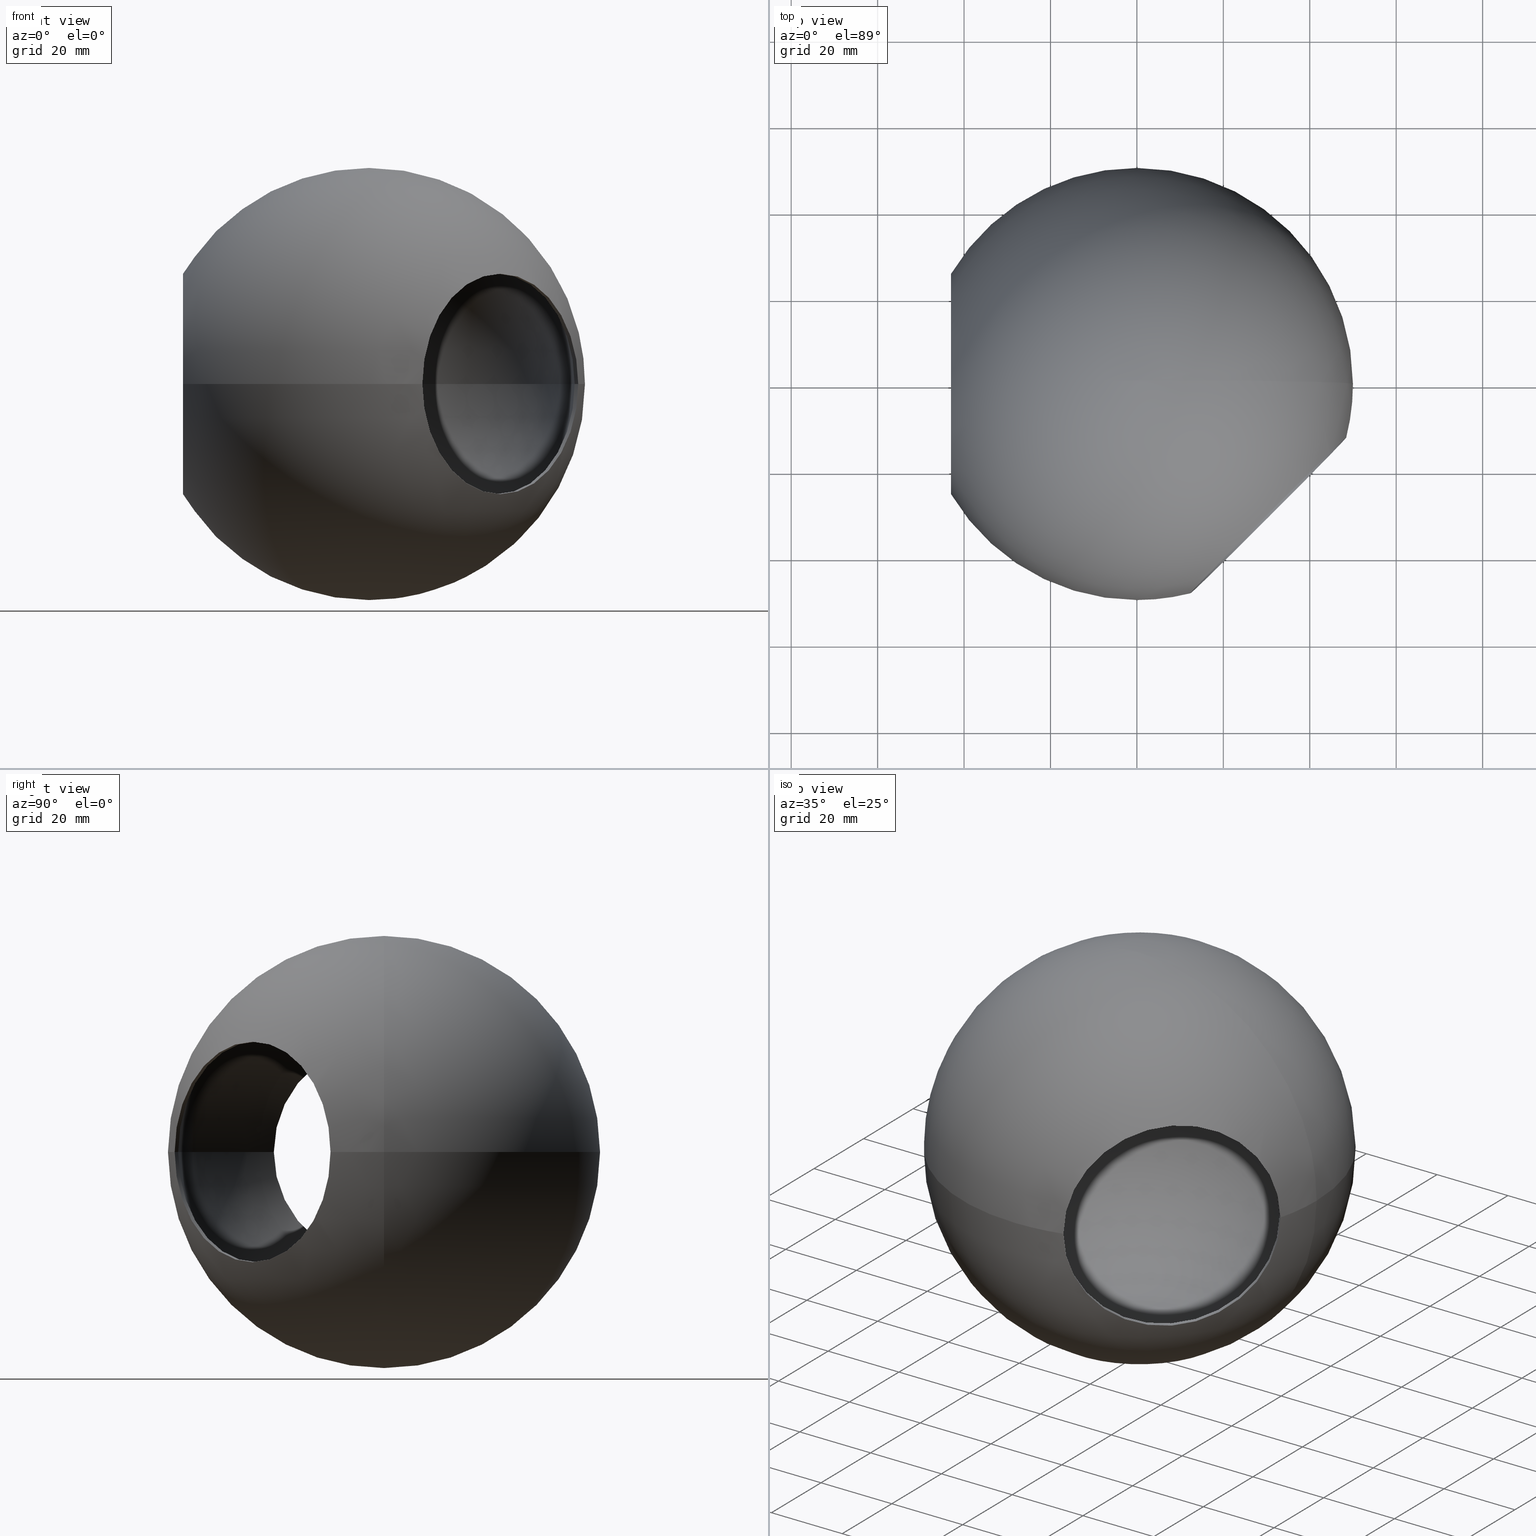
[diagram: canonical four-view strip — front | top / right | iso, engineering-drawing reading convention]
A machine part, canonical four-view strip (front | top / right | iso — engineering-drawing reading convention). The complete STEP part file that produces these views, byte-faithful:
ISO-10303-21;
HEADER;
FILE_DESCRIPTION (( 'STEP AP214' ),
    '1' );
FILE_NAME ('���. KRT315.STEP',
    '2014-07-01T07:06:39',
    ( '' ),
    ( '' ),
    'SwSTEP 2.0',
    'SolidWorks 2014',
    '' );
FILE_SCHEMA (( 'AUTOMOTIVE_DESIGN' ));
ENDSEC;

DATA;
#1 = FACE_OUTER_BOUND ( 'NONE', #287, .T. ) ;
#2 = ORIENTED_EDGE ( 'NONE', *, *, #57, .F. ) ;
#3 = AXIS2_PLACEMENT_3D ( 'NONE', #268, #269, #327 ) ;
#4 = DIRECTION ( 'NONE',  ( 1.000000000000000000, 0.0000000000000000000, 0.0000000000000000000 ) ) ;
#5 = CARTESIAN_POINT ( 'NONE',  ( -41.84196458102798700, 0.0000000000000000000, 0.0000000000000000000 ) ) ;
#6 = FACE_OUTER_BOUND ( 'NONE', #265, .T. ) ;
#7 = DIRECTION ( 'NONE',  ( 1.000000000000000000, 0.0000000000000000000, 0.0000000000000000000 ) ) ;
#8 = APPLICATION_PROTOCOL_DEFINITION ( 'draft international standard', 'automotive_design', 1998, #18 ) ;
#9 = UNCERTAINTY_MEASURE_WITH_UNIT (LENGTH_MEASURE( 1.000000000000000100E-005 ), #217, 'distance_accuracy_value', 'NONE');
#10 = DIRECTION ( 'NONE',  ( 0.0000000000000000000, 0.0000000000000000000, -1.000000000000000000 ) ) ;
#11 = DIRECTION ( 'NONE',  ( 0.0000000000000000000, 0.0000000000000000000, 1.000000000000000000 ) ) ;
#12 = CARTESIAN_POINT ( 'NONE',  ( 12.38053467446315800, -48.44298051497673900, 3.122849337825750200E-015 ) ) ;
#13 = DIRECTION ( 'NONE',  ( 1.000000000000000000, 0.0000000000000000000, 0.0000000000000000000 ) ) ;
#14 = VERTEX_POINT ( 'NONE', #307 ) ;
#15 = EDGE_CURVE ( 'NONE', #152, #25, #199, .T. ) ;
#16 = ORIENTED_EDGE ( 'NONE', *, *, #62, .F. ) ;
#17 = CARTESIAN_POINT ( 'NONE',  ( -43.00872004605578500, 0.0000000000000000000, 0.0000000000000000000 ) ) ;
#18 = APPLICATION_CONTEXT ( 'automotive_design' ) ;
#19 = DIRECTION ( 'NONE',  ( 0.0000000000000000000, 0.0000000000000000000, -1.000000000000000000 ) ) ;
#20 = COLOUR_RGB ( '',0.7529411764705882200, 0.7529411764705882200, 0.7529411764705882200 ) ;
#21 = SURFACE_SIDE_STYLE ('',( #107 ) ) ;
#22 = AXIS2_PLACEMENT_3D ( 'NONE', #181, #4, #205 ) ;
#23 = UNCERTAINTY_MEASURE_WITH_UNIT (LENGTH_MEASURE( 1.000000000000000100E-005 ), #255, 'distance_accuracy_value', 'NONE');
#24 = COLOUR_RGB ( '',0.7529411764705882200, 0.7529411764705882200, 0.7529411764705882200 ) ;
#25 = VERTEX_POINT ( 'NONE', #334 ) ;
#26 = SPHERICAL_SURFACE ( 'NONE', #260, 50.00000000000000000 ) ;
#27 = EDGE_CURVE ( 'NONE', #25, #152, #58, .T. ) ;
#28 = ORIENTED_EDGE ( 'NONE', *, *, #121, .F. ) ;
#29 = EDGE_CURVE ( 'NONE', #114, #152, #51, .T. ) ;
#30 = ORIENTED_EDGE ( 'NONE', *, *, #41, .T. ) ;
#31 = EDGE_CURVE ( 'NONE', #61, #191, #147, .T. ) ;
#32 = EDGE_CURVE ( 'NONE', #14, #301, #296, .T. ) ;
#33 = DIRECTION ( 'NONE',  ( 1.000000000000000000, 0.0000000000000000000, 0.0000000000000000000 ) ) ;
#34 = ORIENTED_EDGE ( 'NONE', *, *, #112, .F. ) ;
#35 = DIRECTION ( 'NONE',  ( 0.0000000000000000000, 0.0000000000000000000, -1.000000000000000000 ) ) ;
#36 = ORIENTED_EDGE ( 'NONE', *, *, #29, .T. ) ;
#37 = EDGE_CURVE ( 'NONE', #225, #191, #44, .T. ) ;
#38 = EDGE_CURVE ( 'NONE', #61, #247, #56, .T. ) ;
#39 = CARTESIAN_POINT ( 'NONE',  ( 3.061616997868383000E-015, 50.00000000000000000, 0.0000000000000000000 ) ) ;
#40 = CARTESIAN_POINT ( 'NONE',  ( -43.00872004605578500, 0.0000000000000000000, 0.0000000000000000000 ) ) ;
#41 = EDGE_CURVE ( 'NONE', #191, #295, #254, .T. ) ;
#42 = SHAPE_DEFINITION_REPRESENTATION ( #283, #157 ) ;
#43 = DIRECTION ( 'NONE',  ( 0.7071067811865514600, -0.7071067811865435800, -0.0000000000000000000 ) ) ;
#44 = CIRCLE ( 'NONE', #173, 25.50000000000000000 ) ;
#45 =( NAMED_UNIT ( * ) SI_UNIT ( $, .STERADIAN. ) SOLID_ANGLE_UNIT ( ) );
#46 = PRODUCT_CONTEXT ( 'NONE', #18, 'mechanical' ) ;
#47 = AXIS2_PLACEMENT_3D ( 'NONE', #302, #236, #13 ) ;
#48 = CARTESIAN_POINT ( 'NONE',  ( -41.84196458102798700, 0.0000000000000000000, 0.0000000000000000000 ) ) ;
#49 = SPHERICAL_SURFACE ( 'NONE', #172, 50.00000000000000000 ) ;
#50 = ADVANCED_FACE ( 'NONE', ( #128 ), #82, .F. ) ;
#51 = CIRCLE ( 'NONE', #316, 49.00000000000000000 ) ;
#52 = ORIENTED_EDGE ( 'NONE', *, *, #31, .T. ) ;
#53 = CLOSED_SHELL ( 'NONE', ( #54, #80, #168, #219, #50, #331, #138, #286 ) ) ;
#54 = ADVANCED_FACE ( 'NONE', ( #1 ), #26, .T. ) ;
#55 = CIRCLE ( 'NONE', #22, 25.50000000000000000 ) ;
#56 = CIRCLE ( 'NONE', #291, 25.50000000000000000 ) ;
#57 = EDGE_CURVE ( 'NONE', #14, #311, #238, .T. ) ;
#58 = CIRCLE ( 'NONE', #97, 25.49999999999999600 ) ;
#59 = DIRECTION ( 'NONE',  ( 0.7071067811865514600, -0.7071067811865435800, -0.0000000000000000000 ) ) ;
#60 = UNCERTAINTY_MEASURE_WITH_UNIT (LENGTH_MEASURE( 1.000000000000000100E-005 ), #155, 'distance_accuracy_value', 'NONE');
#61 = VERTEX_POINT ( 'NONE', #99 ) ;
#62 = EDGE_CURVE ( 'NONE', #25, #332, #337, .T. ) ;
#63 =( GEOMETRIC_REPRESENTATION_CONTEXT ( 3 ) GLOBAL_UNCERTAINTY_ASSIGNED_CONTEXT ( ( #23 ) ) GLOBAL_UNIT_ASSIGNED_CONTEXT ( ( #255, #212, #252 ) ) REPRESENTATION_CONTEXT ( 'NONE', 'WORKASPACE' ) );
#64 = EDGE_CURVE ( 'NONE', #295, #301, #274, .T. ) ;
#65 = EDGE_CURVE ( 'NONE', #152, #133, #140, .T. ) ;
#66 = ORIENTED_EDGE ( 'NONE', *, *, #90, .T. ) ;
#67 = AXIS2_PLACEMENT_3D ( 'NONE', #214, #156, #76 ) ;
#68 = DIRECTION ( 'NONE',  ( 0.0000000000000000000, 0.0000000000000000000, -1.000000000000000000 ) ) ;
#69 = DIRECTION ( 'NONE',  ( 0.7071067811865514600, -0.7071067811865435800, 0.0000000000000000000 ) ) ;
#70 = SURFACE_STYLE_USAGE ( .BOTH. , #178 ) ;
#71 = CARTESIAN_POINT ( 'NONE',  ( -43.00872004605578500, 3.122849337825750200E-015, -25.50000000000000000 ) ) ;
#72 = CARTESIAN_POINT ( 'NONE',  ( 3.061616997868383000E-015, -50.00000000000000000, 0.0000000000000000000 ) ) ;
#73 = FILL_AREA_STYLE_COLOUR ( '', #20 ) ;
#74 = AXIS2_PLACEMENT_3D ( 'NONE', #237, #259, #304 ) ;
#75 = DIRECTION ( 'NONE',  ( -0.7071067811865435800, -0.7071067811865515700, 0.0000000000000000000 ) ) ;
#76 = DIRECTION ( 'NONE',  ( 0.7071067811865435800, 0.7071067811865515700, 0.0000000000000000000 ) ) ;
#77 = ORIENTED_EDGE ( 'NONE', *, *, #184, .T. ) ;
#78 = ORIENTED_EDGE ( 'NONE', *, *, #121, .T. ) ;
#79 = CARTESIAN_POINT ( 'NONE',  ( 72.12489168102781900, 0.0000000000000000000, 25.50000000000000000 ) ) ;
#80 = ADVANCED_FACE ( 'NONE', ( #320 ), #209, .F. ) ;
#81 = CARTESIAN_POINT ( 'NONE',  ( -43.00872004605578500, 0.0000000000000000000, 0.0000000000000000000 ) ) ;
#82 = SPHERICAL_SURFACE ( 'NONE', #235, 49.00000000000000000 ) ;
#83 = AXIS2_PLACEMENT_3D ( 'NONE', #298, #182, #325 ) ;
#84 = DIRECTION ( 'NONE',  ( 0.7071067811865514600, -0.7071067811865435800, -0.0000000000000000000 ) ) ;
#85 = EDGE_CURVE ( 'NONE', #295, #141, #120, .T. ) ;
#86 = CIRCLE ( 'NONE', #285, 25.49999999999999600 ) ;
#87 = ORIENTED_EDGE ( 'NONE', *, *, #57, .T. ) ;
#88 = AXIS2_PLACEMENT_3D ( 'NONE', #137, #308, #218 ) ;
#89 = ORIENTED_EDGE ( 'NONE', *, *, #64, .T. ) ;
#90 = EDGE_CURVE ( 'NONE', #216, #141, #282, .T. ) ;
#91 = CIRCLE ( 'NONE', #180, 25.50000000000000000 ) ;
#92 = CARTESIAN_POINT ( 'NONE',  ( 0.0000000000000000000, 0.0000000000000000000, 0.0000000000000000000 ) ) ;
#93 = DIRECTION ( 'NONE',  ( 1.224646799147353200E-016, 0.0000000000000000000, -1.000000000000000000 ) ) ;
#94 = CARTESIAN_POINT ( 'NONE',  ( -43.00872004605578500, 25.49999999999999600, -5.267049133982682200E-015 ) ) ;
#95 = DIRECTION ( 'NONE',  ( 0.7071067811865435800, 0.7071067811865515700, 0.0000000000000000000 ) ) ;
#96 = CARTESIAN_POINT ( 'NONE',  ( -41.84196458102798700, 0.0000000000000000000, 0.0000000000000000000 ) ) ;
#97 = AXIS2_PLACEMENT_3D ( 'NONE', #306, #84, #200 ) ;
#98 = FILL_AREA_STYLE ('',( #73 ) ) ;
#99 = CARTESIAN_POINT ( 'NONE',  ( -41.84196458102798700, 3.122849337825750200E-015, -25.50000000000000000 ) ) ;
#100 = CIRCLE ( 'NONE', #270, 25.49999999999999600 ) ;
#101 = EDGE_CURVE ( 'NONE', #284, #133, #288, .T. ) ;
#102 = DIRECTION ( 'NONE',  ( 0.0000000000000000000, 0.0000000000000000000, -1.000000000000000000 ) ) ;
#103 = APPLICATION_CONTEXT ( 'automotive_design' ) ;
#104 = DIRECTION ( 'NONE',  ( 1.000000000000000000, 0.0000000000000000000, 0.0000000000000000000 ) ) ;
#105 =( GEOMETRIC_REPRESENTATION_CONTEXT ( 3 ) GLOBAL_UNCERTAINTY_ASSIGNED_CONTEXT ( ( #60 ) ) GLOBAL_UNIT_ASSIGNED_CONTEXT ( ( #155, #185, #266 ) ) REPRESENTATION_CONTEXT ( 'NONE', 'WORKASPACE' ) );
#106 =( NAMED_UNIT ( * ) PLANE_ANGLE_UNIT ( ) SI_UNIT ( $, .RADIAN. ) );
#107 = SURFACE_STYLE_FILL_AREA ( #98 ) ;
#108 = CIRCLE ( 'NONE', #264, 49.00000000000000000 ) ;
#109 = ORIENTED_EDGE ( 'NONE', *, *, #64, .F. ) ;
#110 = ORIENTED_EDGE ( 'NONE', *, *, #289, .F. ) ;
#111 = ORIENTED_EDGE ( 'NONE', *, *, #38, .F. ) ;
#112 = EDGE_CURVE ( 'NONE', #284, #225, #239, .T. ) ;
#113 = SURFACE_STYLE_FILL_AREA ( #229 ) ;
#114 = VERTEX_POINT ( 'NONE', #134 ) ;
#115 = EDGE_CURVE ( 'NONE', #114, #311, #108, .T. ) ;
#116 = AXIS2_PLACEMENT_3D ( 'NONE', #81, #278, #10 ) ;
#117 = ORIENTED_EDGE ( 'NONE', *, *, #27, .F. ) ;
#118 = EDGE_CURVE ( 'NONE', #301, #225, #55, .T. ) ;
#119 = PRESENTATION_LAYER_ASSIGNMENT (  '', '', ( #215 ) ) ;
#120 = CIRCLE ( 'NONE', #139, 50.00000000000000000 ) ;
#121 = EDGE_CURVE ( 'NONE', #133, #216, #100, .T. ) ;
#122 = DIRECTION ( 'NONE',  ( 0.0000000000000000000, 0.0000000000000000000, -1.000000000000000000 ) ) ;
#123 = EDGE_LOOP ( 'NONE', ( #243, #257, #2, #110, #290, #16, #196 ) ) ;
#124 = DIRECTION ( 'NONE',  ( -1.000000000000000000, -0.0000000000000000000, -0.0000000000000000000 ) ) ;
#125 = FILL_AREA_STYLE_COLOUR ( '', #24 ) ;
#126 = ORIENTED_EDGE ( 'NONE', *, *, #85, .T. ) ;
#127 = CARTESIAN_POINT ( 'NONE',  ( 30.41175759472001900, -30.41175759471967800, 0.0000000000000000000 ) ) ;
#128 = FACE_OUTER_BOUND ( 'NONE', #149, .T. ) ;
#129 = DIRECTION ( 'NONE',  ( 1.000000000000000000, 0.0000000000000000000, 0.0000000000000000000 ) ) ;
#130 = CARTESIAN_POINT ( 'NONE',  ( 0.0000000000000000000, 0.0000000000000000000, 0.0000000000000000000 ) ) ;
#131 = DIRECTION ( 'NONE',  ( 1.000000000000000000, 0.0000000000000000000, 0.0000000000000000000 ) ) ;
#132 = CARTESIAN_POINT ( 'NONE',  ( 72.12489168102781900, 3.122849337825750200E-015, -25.50000000000000000 ) ) ;
#133 = VERTEX_POINT ( 'NONE', #12 ) ;
#134 = CARTESIAN_POINT ( 'NONE',  ( 3.000384657911015500E-015, -49.00000000000000000, 0.0000000000000000000 ) ) ;
#135 = CARTESIAN_POINT ( 'NONE',  ( 0.0000000000000000000, 0.0000000000000000000, 0.0000000000000000000 ) ) ;
#136 = ORIENTED_EDGE ( 'NONE', *, *, #112, .T. ) ;
#137 = CARTESIAN_POINT ( 'NONE',  ( 0.0000000000000000000, 0.0000000000000000000, 0.0000000000000000000 ) ) ;
#138 = ADVANCED_FACE ( 'NONE', ( #228 ), #170, .F. ) ;
#139 = AXIS2_PLACEMENT_3D ( 'NONE', #189, #166, #190 ) ;
#140 = LINE ( 'NONE', #258, #329 ) ;
#141 = VERTEX_POINT ( 'NONE', #39 ) ;
#142 = AXIS2_PLACEMENT_3D ( 'NONE', #130, #11, #159 ) ;
#143 = ORIENTED_EDGE ( 'NONE', *, *, #65, .T. ) ;
#144 = AXIS2_PLACEMENT_3D ( 'NONE', #96, #7, #122 ) ;
#145 = FACE_OUTER_BOUND ( 'NONE', #146, .T. ) ;
#146 = EDGE_LOOP ( 'NONE', ( #77, #52, #317, #186, #261, #87 ) ) ;
#147 = LINE ( 'NONE', #132, #222 ) ;
#148 = CARTESIAN_POINT ( 'NONE',  ( 0.0000000000000000000, 0.0000000000000000000, 0.0000000000000000000 ) ) ;
#149 = EDGE_LOOP ( 'NONE', ( #277, #36, #297, #309, #250, #111, #169 ) ) ;
#150 = CARTESIAN_POINT ( 'NONE',  ( 18.03122292025685900, 18.03122292025706100, 0.0000000000000000000 ) ) ;
#151 = FACE_OUTER_BOUND ( 'NONE', #333, .T. ) ;
#152 = VERTEX_POINT ( 'NONE', #271 ) ;
#153 = DIRECTION ( 'NONE',  ( -1.000000000000000000, -0.0000000000000000000, -0.0000000000000000000 ) ) ;
#154 = STYLED_ITEM ( 'NONE', ( #305 ), #262 ) ;
#155 =( LENGTH_UNIT ( ) NAMED_UNIT ( * ) SI_UNIT ( .MILLI., .METRE. ) );
#156 = DIRECTION ( 'NONE',  ( 0.7071067811865514600, -0.7071067811865435800, 0.0000000000000000000 ) ) ;
#157 = ADVANCED_BREP_SHAPE_REPRESENTATION ( '�. KRT315', ( #262, #142 ), #63 ) ;
#158 = DIRECTION ( 'NONE',  ( 0.0000000000000000000, 0.0000000000000000000, -1.000000000000000000 ) ) ;
#159 = DIRECTION ( 'NONE',  ( 1.000000000000000000, 0.0000000000000000000, 0.0000000000000000000 ) ) ;
#160 = ORIENTED_EDGE ( 'NONE', *, *, #15, .F. ) ;
#161 = DIRECTION ( 'NONE',  ( 0.7071067811865514600, -0.7071067811865435800, 0.0000000000000000000 ) ) ;
#162 = CARTESIAN_POINT ( 'NONE',  ( 0.0000000000000000000, 0.0000000000000000000, 0.0000000000000000000 ) ) ;
#163 = ORIENTED_EDGE ( 'NONE', *, *, #101, .T. ) ;
#164 = AXIS2_PLACEMENT_3D ( 'NONE', #92, #93, #176 ) ;
#165 = SURFACE_STYLE_USAGE ( .BOTH. , #21 ) ;
#166 = DIRECTION ( 'NONE',  ( 1.224646799147353200E-016, 0.0000000000000000000, -1.000000000000000000 ) ) ;
#167 = PRODUCT ( '���. KRT315', '���. KRT315', '', ( #46 ) ) ;
#168 = ADVANCED_FACE ( 'NONE', ( #145 ), #338, .F. ) ;
#169 = ORIENTED_EDGE ( 'NONE', *, *, #184, .F. ) ;
#170 = CYLINDRICAL_SURFACE ( 'NONE', #240, 25.49999999999999600 ) ;
#171 = ORIENTED_EDGE ( 'NONE', *, *, #101, .F. ) ;
#172 = AXIS2_PLACEMENT_3D ( 'NONE', #249, #68, #33 ) ;
#173 = AXIS2_PLACEMENT_3D ( 'NONE', #17, #213, #158 ) ;
#174 = FACE_OUTER_BOUND ( 'NONE', #123, .T. ) ;
#175 = AXIS2_PLACEMENT_3D ( 'NONE', #234, #324, #230 ) ;
#176 = DIRECTION ( 'NONE',  ( -1.000000000000000000, 0.0000000000000000000, -1.224646799147353200E-016 ) ) ;
#177 = CYLINDRICAL_SURFACE ( 'NONE', #3, 25.50000000000000000 ) ;
#178 = SURFACE_SIDE_STYLE ('',( #113 ) ) ;
#179 = ORIENTED_EDGE ( 'NONE', *, *, #85, .F. ) ;
#180 = AXIS2_PLACEMENT_3D ( 'NONE', #5, #206, #35 ) ;
#181 = CARTESIAN_POINT ( 'NONE',  ( -43.00872004605578500, 0.0000000000000000000, 0.0000000000000000000 ) ) ;
#182 = DIRECTION ( 'NONE',  ( 0.0000000000000000000, 0.0000000000000000000, -1.000000000000000000 ) ) ;
#183 = DIRECTION ( 'NONE',  ( 1.000000000000000000, 0.0000000000000000000, 0.0000000000000000000 ) ) ;
#184 = EDGE_CURVE ( 'NONE', #311, #61, #313, .T. ) ;
#185 =( NAMED_UNIT ( * ) PLANE_ANGLE_UNIT ( ) SI_UNIT ( $, .RADIAN. ) );
#186 = ORIENTED_EDGE ( 'NONE', *, *, #118, .F. ) ;
#187 = ORIENTED_EDGE ( 'NONE', *, *, #118, .T. ) ;
#188 = PRODUCT_DEFINITION ( 'UNKNOWN', '', #318, #294 ) ;
#189 = CARTESIAN_POINT ( 'NONE',  ( 0.0000000000000000000, 0.0000000000000000000, 0.0000000000000000000 ) ) ;
#190 = DIRECTION ( 'NONE',  ( -1.000000000000000000, 0.0000000000000000000, -1.224646799147353200E-016 ) ) ;
#191 = VERTEX_POINT ( 'NONE', #71 ) ;
#192 = DIRECTION ( 'NONE',  ( 1.224646799147353200E-016, 0.0000000000000000000, -1.000000000000000000 ) ) ;
#193 = CARTESIAN_POINT ( 'NONE',  ( 0.0000000000000000000, 0.0000000000000000000, 0.0000000000000000000 ) ) ;
#194 = AXIS2_PLACEMENT_3D ( 'NONE', #303, #59, #314 ) ;
#195 = MECHANICAL_DESIGN_GEOMETRIC_PRESENTATION_REPRESENTATION (  '', ( #215 ), #211 ) ;
#196 = ORIENTED_EDGE ( 'NONE', *, *, #27, .T. ) ;
#197 = DIRECTION ( 'NONE',  ( -1.000000000000000000, 0.0000000000000000000, -1.224646799147353200E-016 ) ) ;
#198 = SPHERICAL_SURFACE ( 'NONE', #83, 49.00000000000000000 ) ;
#199 = CIRCLE ( 'NONE', #194, 25.49999999999999600 ) ;
#200 = DIRECTION ( 'NONE',  ( -0.7071067811865435800, -0.7071067811865513500, 0.0000000000000000000 ) ) ;
#201 = ORIENTED_EDGE ( 'NONE', *, *, #289, .T. ) ;
#202 = PRODUCT_RELATED_PRODUCT_CATEGORY ( 'part', '', ( #167 ) ) ;
#203 = ORIENTED_EDGE ( 'NONE', *, *, #90, .F. ) ;
#204 = EDGE_CURVE ( 'NONE', #25, #216, #245, .T. ) ;
#205 = DIRECTION ( 'NONE',  ( 0.0000000000000000000, 0.0000000000000000000, -1.000000000000000000 ) ) ;
#206 = DIRECTION ( 'NONE',  ( 1.000000000000000000, 0.0000000000000000000, 0.0000000000000000000 ) ) ;
#207 = CARTESIAN_POINT ( 'NONE',  ( 30.41175759472001900, -30.41175759471967800, 0.0000000000000000000 ) ) ;
#208 = APPLICATION_PROTOCOL_DEFINITION ( 'draft international standard', 'automotive_design', 1998, #103 ) ;
#209 = CYLINDRICAL_SURFACE ( 'NONE', #67, 25.49999999999999600 ) ;
#210 = DIRECTION ( 'NONE',  ( -0.7071067811865435800, -0.7071067811865515700, 0.0000000000000000000 ) ) ;
#211 =( GEOMETRIC_REPRESENTATION_CONTEXT ( 3 ) GLOBAL_UNCERTAINTY_ASSIGNED_CONTEXT ( ( #9 ) ) GLOBAL_UNIT_ASSIGNED_CONTEXT ( ( #217, #106, #45 ) ) REPRESENTATION_CONTEXT ( 'NONE', 'WORKASPACE' ) );
#212 =( NAMED_UNIT ( * ) PLANE_ANGLE_UNIT ( ) SI_UNIT ( $, .RADIAN. ) );
#213 = DIRECTION ( 'NONE',  ( 1.000000000000000000, 0.0000000000000000000, 0.0000000000000000000 ) ) ;
#214 = CARTESIAN_POINT ( 'NONE',  ( 0.0000000000000000000, 0.0000000000000000000, 0.0000000000000000000 ) ) ;
#215 = STYLED_ITEM ( 'NONE', ( #220 ), #157 ) ;
#216 = VERTEX_POINT ( 'NONE', #272 ) ;
#217 =( LENGTH_UNIT ( ) NAMED_UNIT ( * ) SI_UNIT ( .MILLI., .METRE. ) );
#218 = DIRECTION ( 'NONE',  ( 1.000000000000000000, 0.0000000000000000000, 0.0000000000000000000 ) ) ;
#219 = ADVANCED_FACE ( 'NONE', ( #174 ), #198, .F. ) ;
#220 = PRESENTATION_STYLE_ASSIGNMENT (( #165 ) ) ;
#221 = ORIENTED_EDGE ( 'NONE', *, *, #37, .T. ) ;
#222 = VECTOR ( 'NONE', #153, 1000.000000000000000 ) ;
#223 = AXIS2_PLACEMENT_3D ( 'NONE', #40, #131, #19 ) ;
#224 = ORIENTED_EDGE ( 'NONE', *, *, #32, .T. ) ;
#225 = VERTEX_POINT ( 'NONE', #323 ) ;
#226 = CARTESIAN_POINT ( 'NONE',  ( -43.00872004605578500, 0.0000000000000000000, 25.50000000000000000 ) ) ;
#227 = DIRECTION ( 'NONE',  ( 0.7071067811865514600, -0.7071067811865435800, -0.0000000000000000000 ) ) ;
#228 = FACE_OUTER_BOUND ( 'NONE', #241, .T. ) ;
#229 = FILL_AREA_STYLE ('',( #125 ) ) ;
#230 = DIRECTION ( 'NONE',  ( 0.0000000000000000000, 0.0000000000000000000, -1.000000000000000000 ) ) ;
#231 = CARTESIAN_POINT ( 'NONE',  ( 3.000384657911015500E-015, 49.00000000000000000, 0.0000000000000000000 ) ) ;
#232 = DIRECTION ( 'NONE',  ( -1.000000000000000000, -0.0000000000000000000, -0.0000000000000000000 ) ) ;
#233 = ORIENTED_EDGE ( 'NONE', *, *, #65, .F. ) ;
#234 = CARTESIAN_POINT ( 'NONE',  ( -41.84196458102798700, 0.0000000000000000000, 0.0000000000000000000 ) ) ;
#235 = AXIS2_PLACEMENT_3D ( 'NONE', #328, #273, #300 ) ;
#236 = DIRECTION ( 'NONE',  ( 0.0000000000000000000, 0.0000000000000000000, 1.000000000000000000 ) ) ;
#237 = CARTESIAN_POINT ( 'NONE',  ( 0.0000000000000000000, 0.0000000000000000000, 0.0000000000000000000 ) ) ;
#238 = CIRCLE ( 'NONE', #175, 25.50000000000000000 ) ;
#239 = CIRCLE ( 'NONE', #330, 50.00000000000000000 ) ;
#240 = AXIS2_PLACEMENT_3D ( 'NONE', #148, #69, #95 ) ;
#241 = EDGE_LOOP ( 'NONE', ( #233, #117, #275, #310 ) ) ;
#242 = ORIENTED_EDGE ( 'NONE', *, *, #204, .F. ) ;
#243 = ORIENTED_EDGE ( 'NONE', *, *, #29, .F. ) ;
#244 = MECHANICAL_DESIGN_GEOMETRIC_PRESENTATION_REPRESENTATION (  '', ( #154 ), #105 ) ;
#245 = LINE ( 'NONE', #150, #256 ) ;
#246 = CARTESIAN_POINT ( 'NONE',  ( -41.84196458102798700, -25.50000000000000000, -5.124162799419285100E-015 ) ) ;
#247 = VERTEX_POINT ( 'NONE', #322 ) ;
#248 = DIRECTION ( 'NONE',  ( 0.7071067811865514600, -0.7071067811865435800, 0.0000000000000000000 ) ) ;
#249 = CARTESIAN_POINT ( 'NONE',  ( 0.0000000000000000000, 0.0000000000000000000, 0.0000000000000000000 ) ) ;
#250 = ORIENTED_EDGE ( 'NONE', *, *, #281, .F. ) ;
#251 = AXIS2_PLACEMENT_3D ( 'NONE', #292, #124, #299 ) ;
#252 =( NAMED_UNIT ( * ) SI_UNIT ( $, .STERADIAN. ) SOLID_ANGLE_UNIT ( ) );
#253 = DIRECTION ( 'NONE',  ( 0.0000000000000000000, 0.0000000000000000000, -1.000000000000000000 ) ) ;
#254 = CIRCLE ( 'NONE', #116, 25.50000000000000000 ) ;
#255 =( LENGTH_UNIT ( ) NAMED_UNIT ( * ) SI_UNIT ( .MILLI., .METRE. ) );
#256 = VECTOR ( 'NONE', #248, 1000.000000000000000 ) ;
#257 = ORIENTED_EDGE ( 'NONE', *, *, #115, .T. ) ;
#258 = CARTESIAN_POINT ( 'NONE',  ( -18.03122292025685900, -18.03122292025706100, 3.122849337825750200E-015 ) ) ;
#259 = DIRECTION ( 'NONE',  ( 0.0000000000000000000, 0.0000000000000000000, 1.000000000000000000 ) ) ;
#260 = AXIS2_PLACEMENT_3D ( 'NONE', #162, #253, #104 ) ;
#261 = ORIENTED_EDGE ( 'NONE', *, *, #32, .F. ) ;
#262 = MANIFOLD_SOLID_BREP ( '�����-�� ����������1', #53 ) ;
#263 = EDGE_LOOP ( 'NONE', ( #160, #143, #78, #242 ) ) ;
#264 = AXIS2_PLACEMENT_3D ( 'NONE', #135, #192, #197 ) ;
#265 = EDGE_LOOP ( 'NONE', ( #312, #279, #201, #224, #109, #267 ) ) ;
#266 =( NAMED_UNIT ( * ) SI_UNIT ( $, .STERADIAN. ) SOLID_ANGLE_UNIT ( ) );
#267 = ORIENTED_EDGE ( 'NONE', *, *, #41, .F. ) ;
#268 = CARTESIAN_POINT ( 'NONE',  ( 72.12489168102781900, 0.0000000000000000000, 0.0000000000000000000 ) ) ;
#269 = DIRECTION ( 'NONE',  ( -1.000000000000000000, -0.0000000000000000000, -0.0000000000000000000 ) ) ;
#270 = AXIS2_PLACEMENT_3D ( 'NONE', #207, #227, #210 ) ;
#271 = CARTESIAN_POINT ( 'NONE',  ( 11.55551397315553300, -47.61795981366911700, 0.0000000000000000000 ) ) ;
#272 = CARTESIAN_POINT ( 'NONE',  ( 48.44298051497687400, -12.38053467446261600, 0.0000000000000000000 ) ) ;
#273 = DIRECTION ( 'NONE',  ( 0.0000000000000000000, 0.0000000000000000000, -1.000000000000000000 ) ) ;
#274 = CIRCLE ( 'NONE', #223, 25.50000000000000000 ) ;
#275 = ORIENTED_EDGE ( 'NONE', *, *, #204, .T. ) ;
#276 = PRESENTATION_LAYER_ASSIGNMENT (  '', '', ( #154 ) ) ;
#277 = ORIENTED_EDGE ( 'NONE', *, *, #115, .F. ) ;
#278 = DIRECTION ( 'NONE',  ( 1.000000000000000000, 0.0000000000000000000, 0.0000000000000000000 ) ) ;
#279 = ORIENTED_EDGE ( 'NONE', *, *, #38, .T. ) ;
#280 = DIRECTION ( 'NONE',  ( 0.0000000000000000000, 0.0000000000000000000, 1.000000000000000000 ) ) ;
#281 = EDGE_CURVE ( 'NONE', #247, #332, #293, .T. ) ;
#282 = CIRCLE ( 'NONE', #74, 50.00000000000000000 ) ;
#283 = PRODUCT_DEFINITION_SHAPE ( 'NONE', 'NONE',  #188 ) ;
#284 = VERTEX_POINT ( 'NONE', #72 ) ;
#285 = AXIS2_PLACEMENT_3D ( 'NONE', #127, #43, #75 ) ;
#286 = ADVANCED_FACE ( 'NONE', ( #151 ), #49, .T. ) ;
#287 = EDGE_LOOP ( 'NONE', ( #171, #136, #221, #30, #126, #203, #28 ) ) ;
#288 = CIRCLE ( 'NONE', #88, 50.00000000000000000 ) ;
#289 = EDGE_CURVE ( 'NONE', #247, #14, #91, .T. ) ;
#290 = ORIENTED_EDGE ( 'NONE', *, *, #281, .T. ) ;
#291 = AXIS2_PLACEMENT_3D ( 'NONE', #48, #183, #102 ) ;
#292 = CARTESIAN_POINT ( 'NONE',  ( 72.12489168102781900, 0.0000000000000000000, 0.0000000000000000000 ) ) ;
#293 = CIRCLE ( 'NONE', #164, 49.00000000000000000 ) ;
#294 = PRODUCT_DEFINITION_CONTEXT ( 'detailed design', #103, 'design' ) ;
#295 = VERTEX_POINT ( 'NONE', #94 ) ;
#296 = LINE ( 'NONE', #79, #319 ) ;
#297 = ORIENTED_EDGE ( 'NONE', *, *, #15, .T. ) ;
#298 = CARTESIAN_POINT ( 'NONE',  ( 0.0000000000000000000, 0.0000000000000000000, 0.0000000000000000000 ) ) ;
#299 = DIRECTION ( 'NONE',  ( 0.0000000000000000000, 0.0000000000000000000, 1.000000000000000000 ) ) ;
#300 = DIRECTION ( 'NONE',  ( 1.000000000000000000, 0.0000000000000000000, 0.0000000000000000000 ) ) ;
#301 = VERTEX_POINT ( 'NONE', #226 ) ;
#302 = CARTESIAN_POINT ( 'NONE',  ( 0.0000000000000000000, 0.0000000000000000000, 0.0000000000000000000 ) ) ;
#303 = CARTESIAN_POINT ( 'NONE',  ( 29.58673689341239300, -29.58673689341206300, 0.0000000000000000000 ) ) ;
#304 = DIRECTION ( 'NONE',  ( 1.000000000000000000, 0.0000000000000000000, 0.0000000000000000000 ) ) ;
#305 = PRESENTATION_STYLE_ASSIGNMENT (( #70 ) ) ;
#306 = CARTESIAN_POINT ( 'NONE',  ( 29.58673689341239300, -29.58673689341206300, 0.0000000000000000000 ) ) ;
#307 = CARTESIAN_POINT ( 'NONE',  ( -41.84196458102798700, 0.0000000000000000000, 25.50000000000000000 ) ) ;
#308 = DIRECTION ( 'NONE',  ( 0.0000000000000000000, 0.0000000000000000000, 1.000000000000000000 ) ) ;
#309 = ORIENTED_EDGE ( 'NONE', *, *, #62, .T. ) ;
#310 = ORIENTED_EDGE ( 'NONE', *, *, #321, .T. ) ;
#311 = VERTEX_POINT ( 'NONE', #246 ) ;
#312 = ORIENTED_EDGE ( 'NONE', *, *, #31, .F. ) ;
#313 = CIRCLE ( 'NONE', #144, 25.50000000000000000 ) ;
#314 = DIRECTION ( 'NONE',  ( -0.7071067811865435800, -0.7071067811865513500, 0.0000000000000000000 ) ) ;
#315 = ORIENTED_EDGE ( 'NONE', *, *, #321, .F. ) ;
#316 = AXIS2_PLACEMENT_3D ( 'NONE', #326, #280, #129 ) ;
#317 = ORIENTED_EDGE ( 'NONE', *, *, #37, .F. ) ;
#318 = PRODUCT_DEFINITION_FORMATION_WITH_SPECIFIED_SOURCE ( 'ANY', '', #167, .NOT_KNOWN. ) ;
#319 = VECTOR ( 'NONE', #232, 1000.000000000000000 ) ;
#320 = FACE_OUTER_BOUND ( 'NONE', #263, .T. ) ;
#321 = EDGE_CURVE ( 'NONE', #216, #133, #86, .T. ) ;
#322 = CARTESIAN_POINT ( 'NONE',  ( -41.84196458102798700, 25.50000000000000000, -5.124162799419285100E-015 ) ) ;
#323 = CARTESIAN_POINT ( 'NONE',  ( -43.00872004605578500, -25.49999999999999600, -5.267049133982682200E-015 ) ) ;
#324 = DIRECTION ( 'NONE',  ( 1.000000000000000000, 0.0000000000000000000, 0.0000000000000000000 ) ) ;
#325 = DIRECTION ( 'NONE',  ( 1.000000000000000000, 0.0000000000000000000, 0.0000000000000000000 ) ) ;
#326 = CARTESIAN_POINT ( 'NONE',  ( 0.0000000000000000000, 0.0000000000000000000, 0.0000000000000000000 ) ) ;
#327 = DIRECTION ( 'NONE',  ( 0.0000000000000000000, 0.0000000000000000000, 1.000000000000000000 ) ) ;
#328 = CARTESIAN_POINT ( 'NONE',  ( 0.0000000000000000000, 0.0000000000000000000, 0.0000000000000000000 ) ) ;
#329 = VECTOR ( 'NONE', #161, 1000.000000000000000 ) ;
#330 = AXIS2_PLACEMENT_3D ( 'NONE', #193, #335, #336 ) ;
#331 = ADVANCED_FACE ( 'NONE', ( #6 ), #177, .F. ) ;
#332 = VERTEX_POINT ( 'NONE', #231 ) ;
#333 = EDGE_LOOP ( 'NONE', ( #34, #163, #315, #66, #179, #89, #187 ) ) ;
#334 = CARTESIAN_POINT ( 'NONE',  ( 47.61795981366925900, -11.55551397315500100, 0.0000000000000000000 ) ) ;
#335 = DIRECTION ( 'NONE',  ( 1.224646799147353200E-016, 0.0000000000000000000, -1.000000000000000000 ) ) ;
#336 = DIRECTION ( 'NONE',  ( -1.000000000000000000, 0.0000000000000000000, -1.224646799147353200E-016 ) ) ;
#337 = CIRCLE ( 'NONE', #47, 49.00000000000000000 ) ;
#338 = CYLINDRICAL_SURFACE ( 'NONE', #251, 25.50000000000000000 ) ;
ENDSEC;
END-ISO-10303-21;
